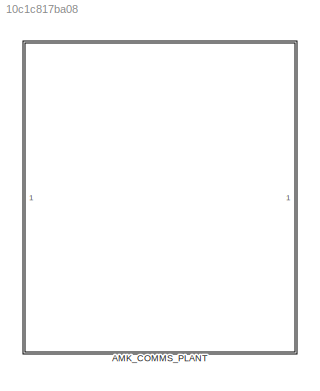
MODEL slx_10c1c817ba08
KIND library
CONFIG AbsTol = auto
CONFIG EnableMultiTasking = off
CONFIG FixedStep = auto
CONFIG MaxStep = auto
CONFIG MinStep = auto
CONFIG RelTol = 1e-3
CONFIG SampleTimeConstraint = Unconstrained
CONFIG SolverName = VariableStepAuto
CONFIG StartTime = 0.0
CONFIG StopTime = 10.0
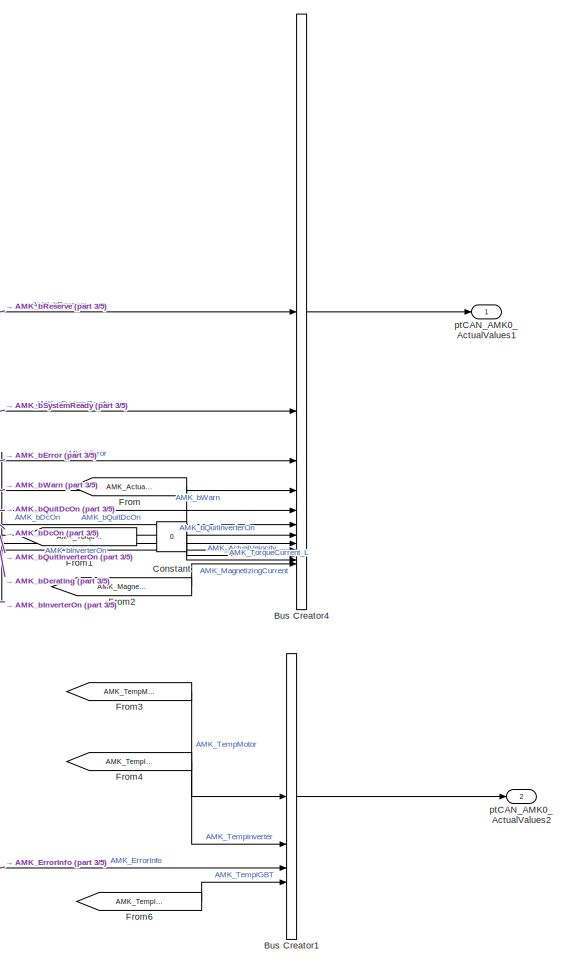
[diagram: AMK_COMMS_PLANT - part 1/5, central region]
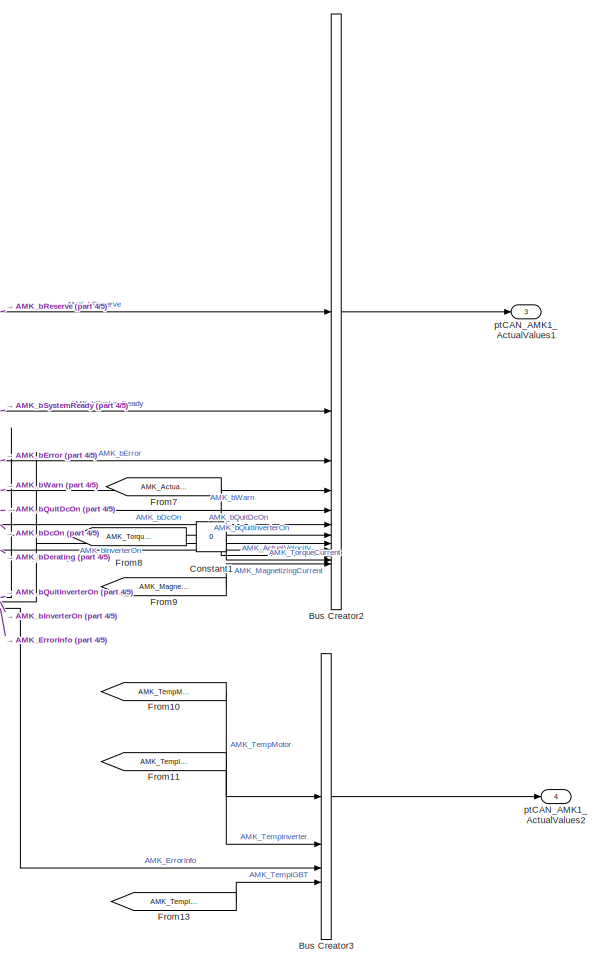
[diagram: AMK_COMMS_PLANT - part 2/5, middle right region]
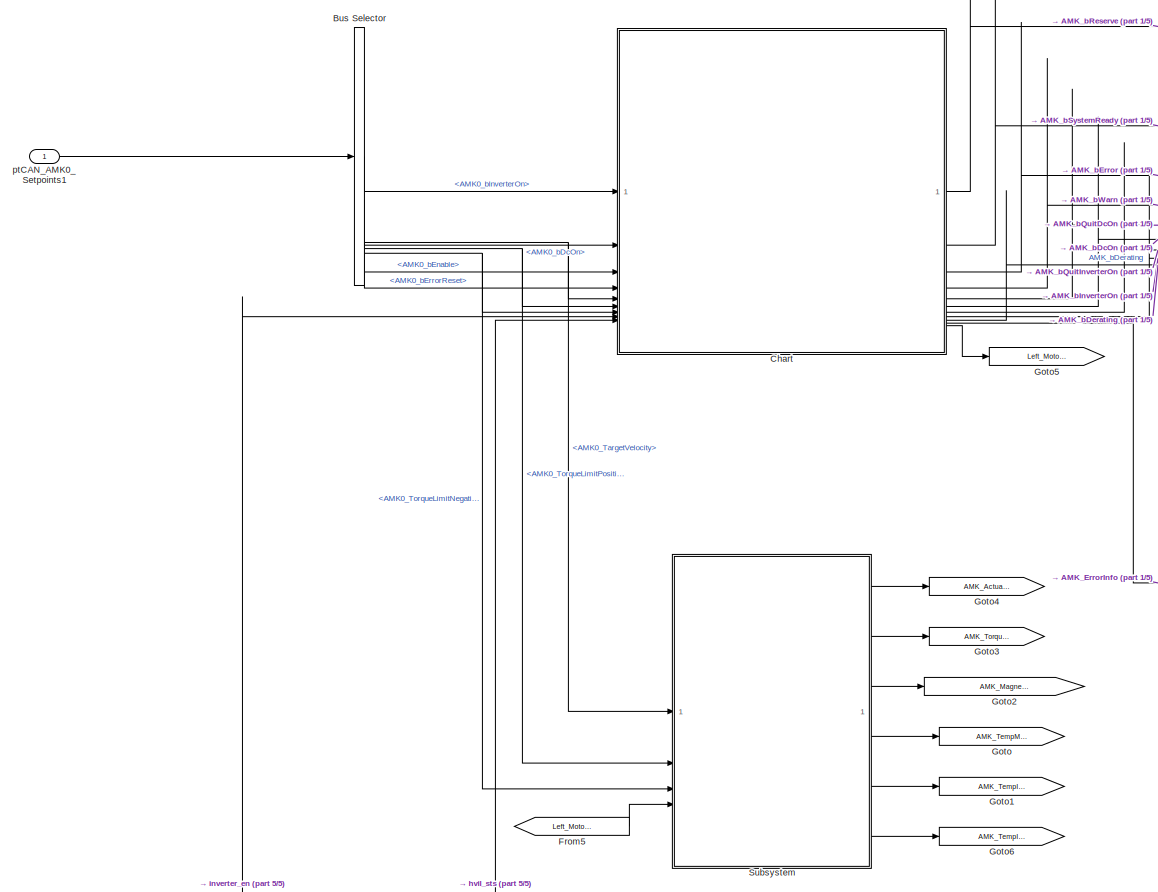
[diagram: AMK_COMMS_PLANT - part 3/5, middle left region]
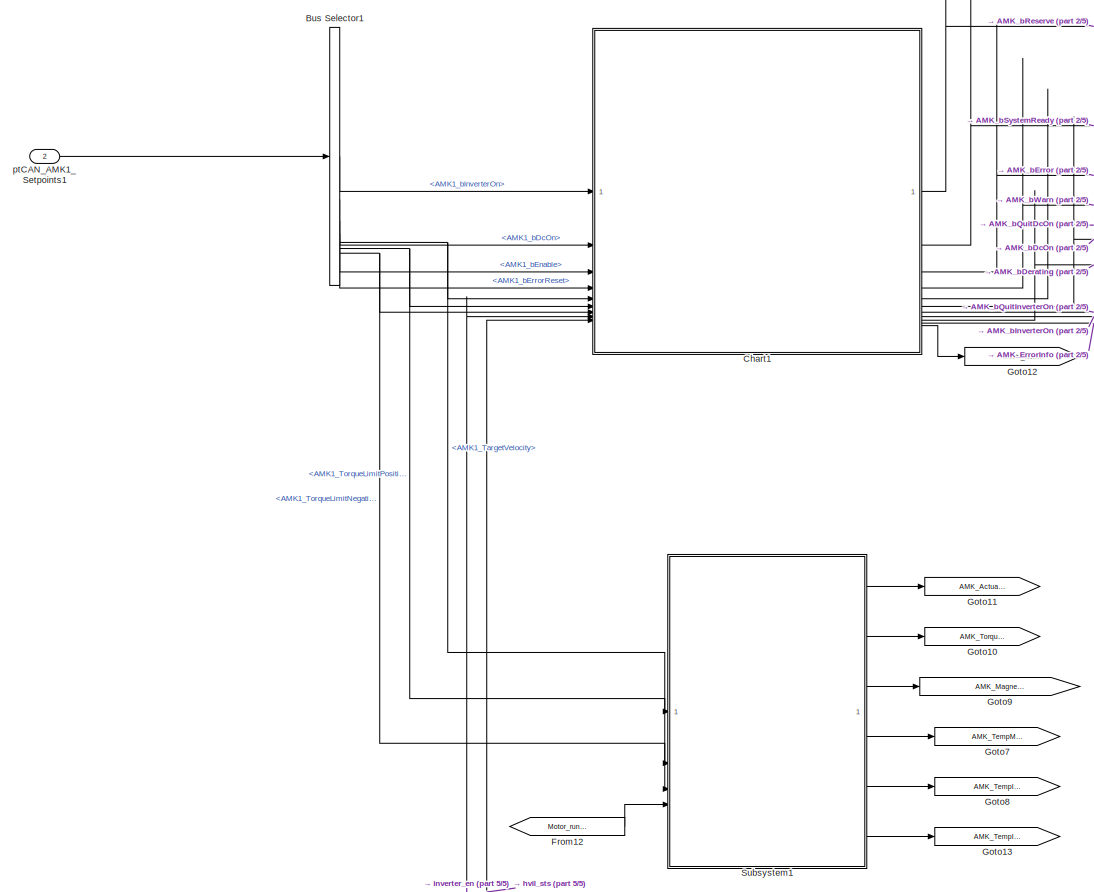
[diagram: AMK_COMMS_PLANT - part 4/5, middle right region]
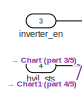
[diagram: AMK_COMMS_PLANT - part 5/5, bottom left region]
BLOCK [SubSystem] AMK_COMMS_PLANT
BLOCK [BusCreator] AMK_COMMS_PLANT/Bus Creator1
  DisplayOption = bar
  InheritFromInputs = on
  Inputs = 4
BLOCK [BusCreator] AMK_COMMS_PLANT/Bus Creator2
  DisplayOption = bar
  InheritFromInputs = on
  Inputs = 12
BLOCK [BusCreator] AMK_COMMS_PLANT/Bus Creator3
  DisplayOption = bar
  InheritFromInputs = on
  Inputs = 4
BLOCK [BusCreator] AMK_COMMS_PLANT/Bus Creator4
  DisplayOption = bar
  InheritFromInputs = on
  Inputs = 12
BLOCK [BusSelector] AMK_COMMS_PLANT/Bus Selector
  OutputSignals = AMK0_bInverterOn,AMK0_bDcOn,AMK0_bEnable,AMK0_bErrorReset,AMK0_TargetVelocity,AMK0_TorqueLimitPositiv,AMK0_TorqueLimitNegativ
BLOCK [BusSelector] AMK_COMMS_PLANT/Bus Selector1
  OutputSignals = AMK1_bInverterOn,AMK1_bDcOn,AMK1_bEnable,AMK1_bErrorReset,AMK1_TargetVelocity,AMK1_TorqueLimitPositiv,AMK1_TorqueLimitNegativ
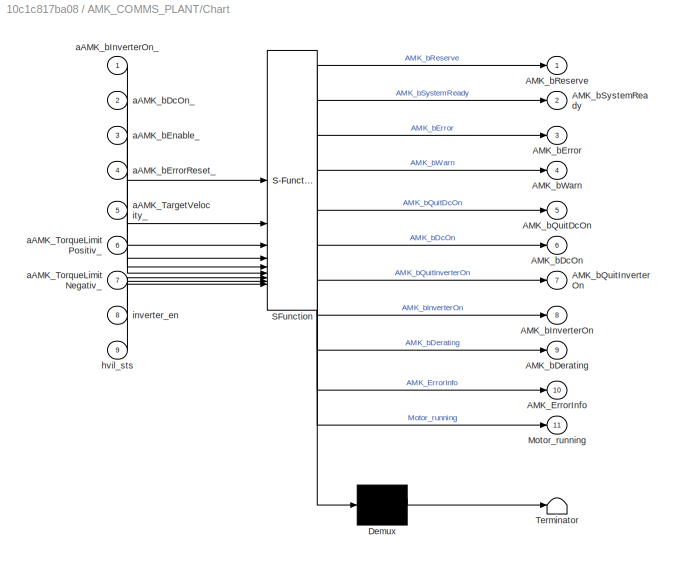
BLOCK [SubSystem] AMK_COMMS_PLANT/Chart
  ErrorFcn = Stateflow.Translate.translate
  PermitHierarchicalResolution = ExplicitOnly
  SFBlockType = Chart
  TreatAsAtomicUnit = on
BLOCK [Demux] AMK_COMMS_PLANT/Chart/ Demux 
  Outputs = 1
BLOCK [S-Function] AMK_COMMS_PLANT/Chart/ SFunction 
  EnableBusSupport = off
  FunctionName = sf_sfun
  PortCounts = [9 12]
  SFcnIsStateOwnerBlock = off
  SFunctionDeploymentMode = off
  Tag = Stateflow S-Function 3
BLOCK [Terminator] AMK_COMMS_PLANT/Chart/ Terminator 
BLOCK [Outport] AMK_COMMS_PLANT/Chart/AMK_ErrorInfo
  Port = 10
BLOCK [Outport] AMK_COMMS_PLANT/Chart/AMK_bDcOn
  Port = 6
BLOCK [Outport] AMK_COMMS_PLANT/Chart/AMK_bDerating
  Port = 9
BLOCK [Outport] AMK_COMMS_PLANT/Chart/AMK_bError
  Port = 3
BLOCK [Outport] AMK_COMMS_PLANT/Chart/AMK_bInverterOn
  Port = 8
BLOCK [Outport] AMK_COMMS_PLANT/Chart/AMK_bQuitDcOn
  Port = 5
BLOCK [Outport] AMK_COMMS_PLANT/Chart/AMK_bQuitInverterOn
  Port = 7
BLOCK [Outport] AMK_COMMS_PLANT/Chart/AMK_bReserve
BLOCK [Outport] AMK_COMMS_PLANT/Chart/AMK_bSystemReady
  Port = 2
BLOCK [Outport] AMK_COMMS_PLANT/Chart/AMK_bWarn
  Port = 4
BLOCK [Outport] AMK_COMMS_PLANT/Chart/Motor_running
  Port = 11
BLOCK [Inport] AMK_COMMS_PLANT/Chart/aAMK_TargetVelocity_
  Port = 5
BLOCK [Inport] AMK_COMMS_PLANT/Chart/aAMK_TorqueLimitNegativ_
  Port = 7
BLOCK [Inport] AMK_COMMS_PLANT/Chart/aAMK_TorqueLimitPositiv_
  Port = 6
BLOCK [Inport] AMK_COMMS_PLANT/Chart/aAMK_bDcOn_
  Port = 2
BLOCK [Inport] AMK_COMMS_PLANT/Chart/aAMK_bEnable_
  Port = 3
BLOCK [Inport] AMK_COMMS_PLANT/Chart/aAMK_bErrorReset_
  Port = 4
BLOCK [Inport] AMK_COMMS_PLANT/Chart/aAMK_bInverterOn_
BLOCK [Inport] AMK_COMMS_PLANT/Chart/hvil_sts
  Port = 9
BLOCK [Inport] AMK_COMMS_PLANT/Chart/inverter_en
  Port = 8
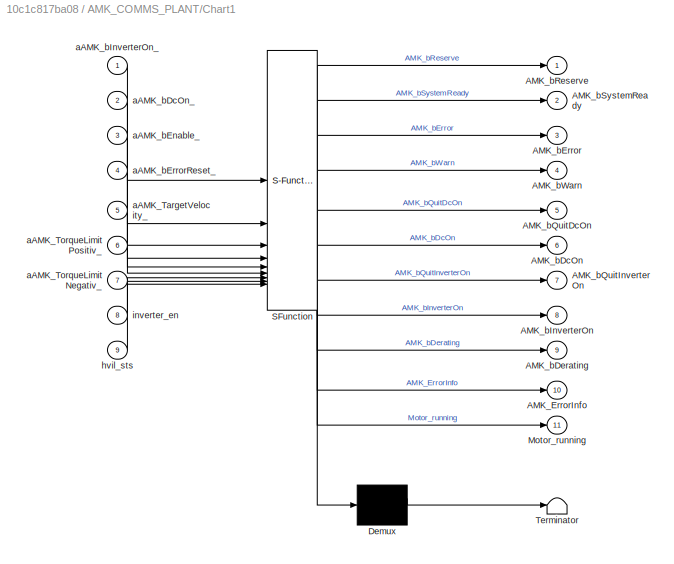
BLOCK [SubSystem] AMK_COMMS_PLANT/Chart1
  ErrorFcn = Stateflow.Translate.translate
  PermitHierarchicalResolution = ExplicitOnly
  SFBlockType = Chart
  TreatAsAtomicUnit = on
BLOCK [Demux] AMK_COMMS_PLANT/Chart1/ Demux 
  Outputs = 1
BLOCK [S-Function] AMK_COMMS_PLANT/Chart1/ SFunction 
  EnableBusSupport = off
  FunctionName = sf_sfun
  PortCounts = [9 12]
  SFcnIsStateOwnerBlock = off
  SFunctionDeploymentMode = off
  Tag = Stateflow S-Function 1
BLOCK [Terminator] AMK_COMMS_PLANT/Chart1/ Terminator 
BLOCK [Outport] AMK_COMMS_PLANT/Chart1/AMK_ErrorInfo
  Port = 10
BLOCK [Outport] AMK_COMMS_PLANT/Chart1/AMK_bDcOn
  Port = 6
BLOCK [Outport] AMK_COMMS_PLANT/Chart1/AMK_bDerating
  Port = 9
BLOCK [Outport] AMK_COMMS_PLANT/Chart1/AMK_bError
  Port = 3
BLOCK [Outport] AMK_COMMS_PLANT/Chart1/AMK_bInverterOn
  Port = 8
BLOCK [Outport] AMK_COMMS_PLANT/Chart1/AMK_bQuitDcOn
  Port = 5
BLOCK [Outport] AMK_COMMS_PLANT/Chart1/AMK_bQuitInverterOn
  Port = 7
BLOCK [Outport] AMK_COMMS_PLANT/Chart1/AMK_bReserve
BLOCK [Outport] AMK_COMMS_PLANT/Chart1/AMK_bSystemReady
  Port = 2
BLOCK [Outport] AMK_COMMS_PLANT/Chart1/AMK_bWarn
  Port = 4
BLOCK [Outport] AMK_COMMS_PLANT/Chart1/Motor_running
  Port = 11
BLOCK [Inport] AMK_COMMS_PLANT/Chart1/aAMK_TargetVelocity_
  Port = 5
BLOCK [Inport] AMK_COMMS_PLANT/Chart1/aAMK_TorqueLimitNegativ_
  Port = 7
BLOCK [Inport] AMK_COMMS_PLANT/Chart1/aAMK_TorqueLimitPositiv_
  Port = 6
BLOCK [Inport] AMK_COMMS_PLANT/Chart1/aAMK_bDcOn_
  Port = 2
BLOCK [Inport] AMK_COMMS_PLANT/Chart1/aAMK_bEnable_
  Port = 3
BLOCK [Inport] AMK_COMMS_PLANT/Chart1/aAMK_bErrorReset_
  Port = 4
BLOCK [Inport] AMK_COMMS_PLANT/Chart1/aAMK_bInverterOn_
BLOCK [Inport] AMK_COMMS_PLANT/Chart1/hvil_sts
  Port = 9
BLOCK [Inport] AMK_COMMS_PLANT/Chart1/inverter_en
  Port = 8
BLOCK [Constant] AMK_COMMS_PLANT/Constant
  Value = 0
BLOCK [Constant] AMK_COMMS_PLANT/Constant1
  Value = 0
BLOCK [From] AMK_COMMS_PLANT/From
  GotoTag = AMK_ActualVelocity_L
BLOCK [From] AMK_COMMS_PLANT/From1
  GotoTag = AMK_TorqueCurrent_L
BLOCK [From] AMK_COMMS_PLANT/From10
  GotoTag = AMK_TempMotor
BLOCK [From] AMK_COMMS_PLANT/From11
  GotoTag = AMK_TempInverter
BLOCK [From] AMK_COMMS_PLANT/From12
  GotoTag = Motor_running
BLOCK [From] AMK_COMMS_PLANT/From13
  GotoTag = AMK_TempIGBT
BLOCK [From] AMK_COMMS_PLANT/From2
  GotoTag = AMK_MagnetizingCurrent_L
BLOCK [From] AMK_COMMS_PLANT/From3
  GotoTag = AMK_TempMotor_L
BLOCK [From] AMK_COMMS_PLANT/From4
  GotoTag = AMK_TempInverter_L
BLOCK [From] AMK_COMMS_PLANT/From5
  GotoTag = Left_Motor_running
BLOCK [From] AMK_COMMS_PLANT/From6
  GotoTag = AMK_TempIGBT_L
BLOCK [From] AMK_COMMS_PLANT/From7
  GotoTag = AMK_ActualVelocity
BLOCK [From] AMK_COMMS_PLANT/From8
  GotoTag = AMK_TorqueCurrent
BLOCK [From] AMK_COMMS_PLANT/From9
  GotoTag = AMK_MagnetizingCurrent
BLOCK [Goto] AMK_COMMS_PLANT/Goto
  GotoTag = AMK_TempMotor_L
BLOCK [Goto] AMK_COMMS_PLANT/Goto1
  GotoTag = AMK_TempInverter_L
BLOCK [Goto] AMK_COMMS_PLANT/Goto10
  GotoTag = AMK_TorqueCurrent
BLOCK [Goto] AMK_COMMS_PLANT/Goto11
  GotoTag = AMK_ActualVelocity
BLOCK [Goto] AMK_COMMS_PLANT/Goto12
  GotoTag = Motor_running
BLOCK [Goto] AMK_COMMS_PLANT/Goto13
  GotoTag = AMK_TempIGBT
BLOCK [Goto] AMK_COMMS_PLANT/Goto2
  GotoTag = AMK_MagnetizingCurrent_L
BLOCK [Goto] AMK_COMMS_PLANT/Goto3
  GotoTag = AMK_TorqueCurrent_L
BLOCK [Goto] AMK_COMMS_PLANT/Goto4
  GotoTag = AMK_ActualVelocity_L
BLOCK [Goto] AMK_COMMS_PLANT/Goto5
  GotoTag = Left_Motor_running
BLOCK [Goto] AMK_COMMS_PLANT/Goto6
  GotoTag = AMK_TempIGBT_L
BLOCK [Goto] AMK_COMMS_PLANT/Goto7
  GotoTag = AMK_TempMotor
BLOCK [Goto] AMK_COMMS_PLANT/Goto8
  GotoTag = AMK_TempInverter
BLOCK [Goto] AMK_COMMS_PLANT/Goto9
  GotoTag = AMK_MagnetizingCurrent
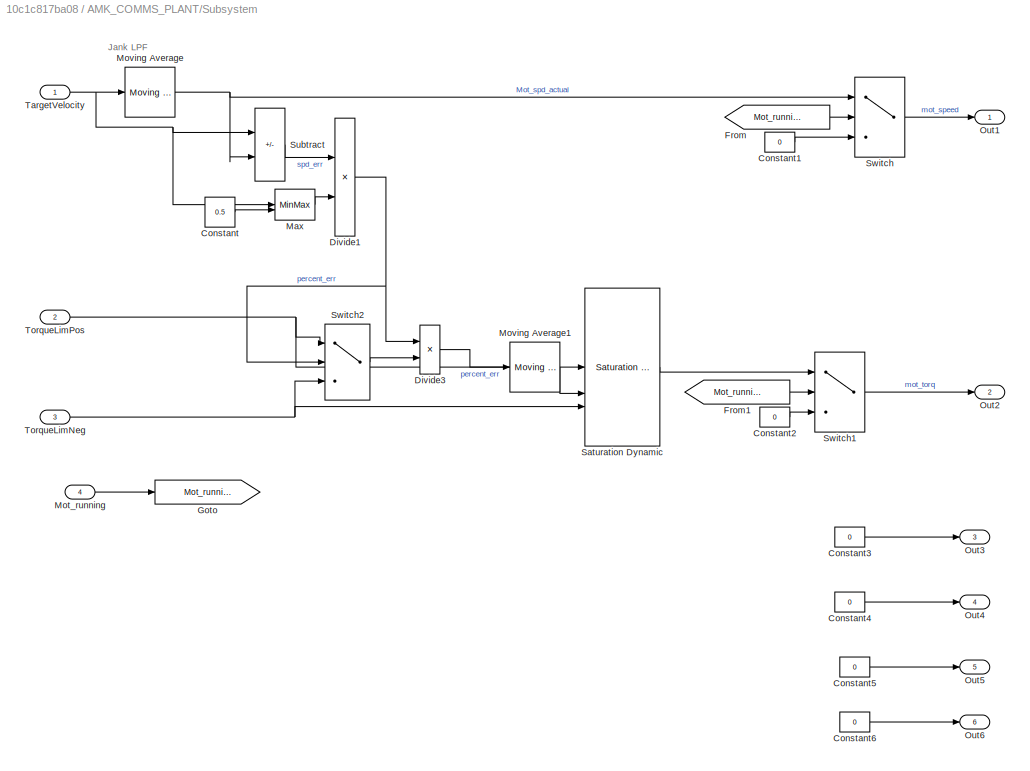
BLOCK [SubSystem] AMK_COMMS_PLANT/Subsystem
BLOCK [Constant] AMK_COMMS_PLANT/Subsystem/Constant
  Value = 0.5
BLOCK [Constant] AMK_COMMS_PLANT/Subsystem/Constant1
  Value = 0
BLOCK [Constant] AMK_COMMS_PLANT/Subsystem/Constant2
  Value = 0
BLOCK [Constant] AMK_COMMS_PLANT/Subsystem/Constant3
  OutDataTypeStr = single
  Value = 0
BLOCK [Constant] AMK_COMMS_PLANT/Subsystem/Constant4
  OutDataTypeStr = single
  Value = 0
BLOCK [Constant] AMK_COMMS_PLANT/Subsystem/Constant5
  OutDataTypeStr = single
  Value = 0
BLOCK [Constant] AMK_COMMS_PLANT/Subsystem/Constant6
  OutDataTypeStr = single
  Value = 0
BLOCK [Product] AMK_COMMS_PLANT/Subsystem/Divide1
  Inputs = */
BLOCK [Product] AMK_COMMS_PLANT/Subsystem/Divide3
  Inputs = **
BLOCK [From] AMK_COMMS_PLANT/Subsystem/From
  GotoTag = Mot_running
BLOCK [From] AMK_COMMS_PLANT/Subsystem/From1
  GotoTag = Mot_running
BLOCK [Goto] AMK_COMMS_PLANT/Subsystem/Goto
  GotoTag = Mot_running
BLOCK [MinMax] AMK_COMMS_PLANT/Subsystem/Max
  Function = max
  Inputs = 2
BLOCK [Inport] AMK_COMMS_PLANT/Subsystem/Mot_running
  Port = 4
BLOCK [Reference] AMK_COMMS_PLANT/Subsystem/Moving Average  REF=dspstat3/Moving
Average
  SourceBlock = dspstat3/Moving\nAverage
  SourceType = dsp.simulink.MovingAverage
BLOCK [Reference] AMK_COMMS_PLANT/Subsystem/Moving Average1  REF=dspstat3/Moving
Average
  SourceBlock = dspstat3/Moving\nAverage
  SourceType = dsp.simulink.MovingAverage
BLOCK [Outport] AMK_COMMS_PLANT/Subsystem/Out1
BLOCK [Outport] AMK_COMMS_PLANT/Subsystem/Out2
  Port = 2
BLOCK [Outport] AMK_COMMS_PLANT/Subsystem/Out3
  Port = 3
BLOCK [Outport] AMK_COMMS_PLANT/Subsystem/Out4
  Port = 4
BLOCK [Outport] AMK_COMMS_PLANT/Subsystem/Out5
  Port = 5
BLOCK [Outport] AMK_COMMS_PLANT/Subsystem/Out6
  Port = 6
BLOCK [Reference] AMK_COMMS_PLANT/Subsystem/Saturation Dynamic  REF=simulink/Discontinuities/Saturation
Dynamic
  SourceBlock = simulink/Discontinuities/Saturation\nDynamic
  SourceType = Saturation Dynamic
BLOCK [Sum] AMK_COMMS_PLANT/Subsystem/Subtract
  IconShape = rectangular
  Inputs = +-
BLOCK [Switch] AMK_COMMS_PLANT/Subsystem/Switch
  Criteria = u2 > Threshold
  InputSameDT = off
  OutDataTypeStr = single
  SaturateOnIntegerOverflow = off
BLOCK [Switch] AMK_COMMS_PLANT/Subsystem/Switch1
  Criteria = u2 > Threshold
  InputSameDT = off
  OutDataTypeStr = single
  SaturateOnIntegerOverflow = off
BLOCK [Switch] AMK_COMMS_PLANT/Subsystem/Switch2
  InputSameDT = off
  SaturateOnIntegerOverflow = off
BLOCK [Inport] AMK_COMMS_PLANT/Subsystem/TargetVelocity
BLOCK [Inport] AMK_COMMS_PLANT/Subsystem/TorqueLimNeg
  Port = 3
BLOCK [Inport] AMK_COMMS_PLANT/Subsystem/TorqueLimPos
  Port = 2
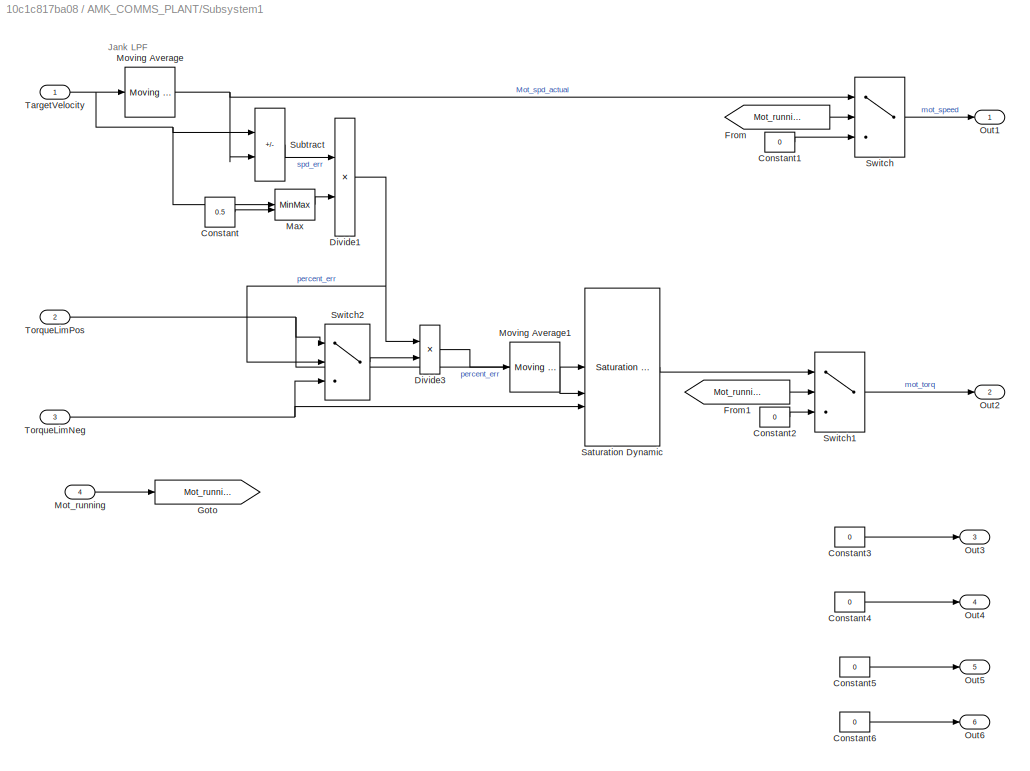
BLOCK [SubSystem] AMK_COMMS_PLANT/Subsystem1
BLOCK [Constant] AMK_COMMS_PLANT/Subsystem1/Constant
  Value = 0.5
BLOCK [Constant] AMK_COMMS_PLANT/Subsystem1/Constant1
  Value = 0
BLOCK [Constant] AMK_COMMS_PLANT/Subsystem1/Constant2
  Value = 0
BLOCK [Constant] AMK_COMMS_PLANT/Subsystem1/Constant3
  OutDataTypeStr = single
  Value = 0
BLOCK [Constant] AMK_COMMS_PLANT/Subsystem1/Constant4
  OutDataTypeStr = single
  Value = 0
BLOCK [Constant] AMK_COMMS_PLANT/Subsystem1/Constant5
  OutDataTypeStr = single
  Value = 0
BLOCK [Constant] AMK_COMMS_PLANT/Subsystem1/Constant6
  OutDataTypeStr = single
  Value = 0
BLOCK [Product] AMK_COMMS_PLANT/Subsystem1/Divide1
  Inputs = */
BLOCK [Product] AMK_COMMS_PLANT/Subsystem1/Divide3
  Inputs = **
BLOCK [From] AMK_COMMS_PLANT/Subsystem1/From
  GotoTag = Mot_running
BLOCK [From] AMK_COMMS_PLANT/Subsystem1/From1
  GotoTag = Mot_running
BLOCK [Goto] AMK_COMMS_PLANT/Subsystem1/Goto
  GotoTag = Mot_running
BLOCK [MinMax] AMK_COMMS_PLANT/Subsystem1/Max
  Function = max
  Inputs = 2
BLOCK [Inport] AMK_COMMS_PLANT/Subsystem1/Mot_running
  Port = 4
BLOCK [Reference] AMK_COMMS_PLANT/Subsystem1/Moving Average  REF=dspstat3/Moving
Average
  SourceBlock = dspstat3/Moving\nAverage
  SourceType = dsp.simulink.MovingAverage
BLOCK [Reference] AMK_COMMS_PLANT/Subsystem1/Moving Average1  REF=dspstat3/Moving
Average
  SourceBlock = dspstat3/Moving\nAverage
  SourceType = dsp.simulink.MovingAverage
BLOCK [Outport] AMK_COMMS_PLANT/Subsystem1/Out1
BLOCK [Outport] AMK_COMMS_PLANT/Subsystem1/Out2
  Port = 2
BLOCK [Outport] AMK_COMMS_PLANT/Subsystem1/Out3
  Port = 3
BLOCK [Outport] AMK_COMMS_PLANT/Subsystem1/Out4
  Port = 4
BLOCK [Outport] AMK_COMMS_PLANT/Subsystem1/Out5
  Port = 5
BLOCK [Outport] AMK_COMMS_PLANT/Subsystem1/Out6
  Port = 6
BLOCK [Reference] AMK_COMMS_PLANT/Subsystem1/Saturation Dynamic  REF=simulink/Discontinuities/Saturation
Dynamic
  SourceBlock = simulink/Discontinuities/Saturation\nDynamic
  SourceType = Saturation Dynamic
BLOCK [Sum] AMK_COMMS_PLANT/Subsystem1/Subtract
  IconShape = rectangular
  Inputs = +-
BLOCK [Switch] AMK_COMMS_PLANT/Subsystem1/Switch
  Criteria = u2 > Threshold
  InputSameDT = off
  OutDataTypeStr = single
  SaturateOnIntegerOverflow = off
BLOCK [Switch] AMK_COMMS_PLANT/Subsystem1/Switch1
  Criteria = u2 > Threshold
  InputSameDT = off
  OutDataTypeStr = single
  SaturateOnIntegerOverflow = off
BLOCK [Switch] AMK_COMMS_PLANT/Subsystem1/Switch2
  InputSameDT = off
  SaturateOnIntegerOverflow = off
BLOCK [Inport] AMK_COMMS_PLANT/Subsystem1/TargetVelocity
BLOCK [Inport] AMK_COMMS_PLANT/Subsystem1/TorqueLimNeg
  Port = 3
BLOCK [Inport] AMK_COMMS_PLANT/Subsystem1/TorqueLimPos
  Port = 2
BLOCK [Inport] AMK_COMMS_PLANT/hvil_sts
  Port = 4
BLOCK [Inport] AMK_COMMS_PLANT/inverter_en
  Port = 3
BLOCK [Outport] AMK_COMMS_PLANT/ptCAN_AMK0_ActualValues1
BLOCK [Outport] AMK_COMMS_PLANT/ptCAN_AMK0_ActualValues2
  Port = 2
BLOCK [Inport] AMK_COMMS_PLANT/ptCAN_AMK0_Setpoints1
BLOCK [Outport] AMK_COMMS_PLANT/ptCAN_AMK1_ActualValues1
  Port = 3
BLOCK [Outport] AMK_COMMS_PLANT/ptCAN_AMK1_ActualValues2
  Port = 4
BLOCK [Inport] AMK_COMMS_PLANT/ptCAN_AMK1_Setpoints1
  Port = 2
ANNOTATION AMK_COMMS_PLANT/Subsystem: Jank LPF
ANNOTATION AMK_COMMS_PLANT/Subsystem1: Jank LPF
LINE AMK_COMMS_PLANT/Bus Creator1:1 -> AMK_COMMS_PLANT/ptCAN_AMK0_ActualValues2:1
LINE AMK_COMMS_PLANT/Bus Creator2:1 -> AMK_COMMS_PLANT/ptCAN_AMK1_ActualValues1:1
LINE AMK_COMMS_PLANT/Bus Creator3:1 -> AMK_COMMS_PLANT/ptCAN_AMK1_ActualValues2:1
LINE AMK_COMMS_PLANT/Bus Creator4:1 -> AMK_COMMS_PLANT/ptCAN_AMK0_ActualValues1:1
LINE AMK_COMMS_PLANT/Bus Selector1:1 -> AMK_COMMS_PLANT/Chart1:1
LINE AMK_COMMS_PLANT/Bus Selector1:2 -> AMK_COMMS_PLANT/Chart1:2
LINE AMK_COMMS_PLANT/Bus Selector1:3 -> AMK_COMMS_PLANT/Chart1:3
LINE AMK_COMMS_PLANT/Bus Selector1:4 -> AMK_COMMS_PLANT/Chart1:4
NET AMK_COMMS_PLANT/Bus Selector1:5 -> AMK_COMMS_PLANT/Chart1:5, AMK_COMMS_PLANT/Subsystem1:1
NET AMK_COMMS_PLANT/Bus Selector1:6 -> AMK_COMMS_PLANT/Chart1:6, AMK_COMMS_PLANT/Subsystem1:2
NET AMK_COMMS_PLANT/Bus Selector1:7 -> AMK_COMMS_PLANT/Chart1:7, AMK_COMMS_PLANT/Subsystem1:3
LINE AMK_COMMS_PLANT/Bus Selector:1 -> AMK_COMMS_PLANT/Chart:1
LINE AMK_COMMS_PLANT/Bus Selector:2 -> AMK_COMMS_PLANT/Chart:2
LINE AMK_COMMS_PLANT/Bus Selector:3 -> AMK_COMMS_PLANT/Chart:3
LINE AMK_COMMS_PLANT/Bus Selector:4 -> AMK_COMMS_PLANT/Chart:4
NET AMK_COMMS_PLANT/Bus Selector:5 -> AMK_COMMS_PLANT/Chart:5, AMK_COMMS_PLANT/Subsystem:1
NET AMK_COMMS_PLANT/Bus Selector:6 -> AMK_COMMS_PLANT/Chart:6, AMK_COMMS_PLANT/Subsystem:2
NET AMK_COMMS_PLANT/Bus Selector:7 -> AMK_COMMS_PLANT/Chart:7, AMK_COMMS_PLANT/Subsystem:3
LINE AMK_COMMS_PLANT/Chart1:1 -> AMK_COMMS_PLANT/Bus Creator2:1
LINE AMK_COMMS_PLANT/Chart1:10 -> AMK_COMMS_PLANT/Bus Creator3:3
LINE AMK_COMMS_PLANT/Chart1:11 -> AMK_COMMS_PLANT/Goto12:1
LINE AMK_COMMS_PLANT/Chart1:2 -> AMK_COMMS_PLANT/Bus Creator2:2
LINE AMK_COMMS_PLANT/Chart1:3 -> AMK_COMMS_PLANT/Bus Creator2:3
LINE AMK_COMMS_PLANT/Chart1:4 -> AMK_COMMS_PLANT/Bus Creator2:4
LINE AMK_COMMS_PLANT/Chart1:5 -> AMK_COMMS_PLANT/Bus Creator2:5
LINE AMK_COMMS_PLANT/Chart1:6 -> AMK_COMMS_PLANT/Bus Creator2:6
LINE AMK_COMMS_PLANT/Chart1:7 -> AMK_COMMS_PLANT/Bus Creator2:7
LINE AMK_COMMS_PLANT/Chart1:8 -> AMK_COMMS_PLANT/Bus Creator2:8
LINE AMK_COMMS_PLANT/Chart1:9 -> AMK_COMMS_PLANT/Bus Creator2:9
LINE AMK_COMMS_PLANT/Chart:1 -> AMK_COMMS_PLANT/Bus Creator4:1
LINE AMK_COMMS_PLANT/Chart:10 -> AMK_COMMS_PLANT/Bus Creator1:3
LINE AMK_COMMS_PLANT/Chart:11 -> AMK_COMMS_PLANT/Goto5:1
LINE AMK_COMMS_PLANT/Chart:2 -> AMK_COMMS_PLANT/Bus Creator4:2
LINE AMK_COMMS_PLANT/Chart:3 -> AMK_COMMS_PLANT/Bus Creator4:3
LINE AMK_COMMS_PLANT/Chart:4 -> AMK_COMMS_PLANT/Bus Creator4:4
LINE AMK_COMMS_PLANT/Chart:5 -> AMK_COMMS_PLANT/Bus Creator4:5
LINE AMK_COMMS_PLANT/Chart:6 -> AMK_COMMS_PLANT/Bus Creator4:6
LINE AMK_COMMS_PLANT/Chart:7 -> AMK_COMMS_PLANT/Bus Creator4:7
LINE AMK_COMMS_PLANT/Chart:8 -> AMK_COMMS_PLANT/Bus Creator4:8
LINE AMK_COMMS_PLANT/Chart:9 -> AMK_COMMS_PLANT/Bus Creator4:9
LINE AMK_COMMS_PLANT/Constant1:1 -> AMK_COMMS_PLANT/Bus Creator2:11
LINE AMK_COMMS_PLANT/Constant:1 -> AMK_COMMS_PLANT/Bus Creator4:11
LINE AMK_COMMS_PLANT/From10:1 -> AMK_COMMS_PLANT/Bus Creator3:1
LINE AMK_COMMS_PLANT/From11:1 -> AMK_COMMS_PLANT/Bus Creator3:2
LINE AMK_COMMS_PLANT/From12:1 -> AMK_COMMS_PLANT/Subsystem1:4
LINE AMK_COMMS_PLANT/From13:1 -> AMK_COMMS_PLANT/Bus Creator3:4
LINE AMK_COMMS_PLANT/From2:1 -> AMK_COMMS_PLANT/Bus Creator4:12
LINE AMK_COMMS_PLANT/From3:1 -> AMK_COMMS_PLANT/Bus Creator1:1
LINE AMK_COMMS_PLANT/From4:1 -> AMK_COMMS_PLANT/Bus Creator1:2
LINE AMK_COMMS_PLANT/From5:1 -> AMK_COMMS_PLANT/Subsystem:4
LINE AMK_COMMS_PLANT/From6:1 -> AMK_COMMS_PLANT/Bus Creator1:4
LINE AMK_COMMS_PLANT/From7:1 -> AMK_COMMS_PLANT/Bus Creator2:10
LINE AMK_COMMS_PLANT/From9:1 -> AMK_COMMS_PLANT/Bus Creator2:12
LINE AMK_COMMS_PLANT/From:1 -> AMK_COMMS_PLANT/Bus Creator4:10
LINE AMK_COMMS_PLANT/Subsystem/Constant1:1 -> AMK_COMMS_PLANT/Subsystem/Switch:3
LINE AMK_COMMS_PLANT/Subsystem/Constant2:1 -> AMK_COMMS_PLANT/Subsystem/Switch1:3
LINE AMK_COMMS_PLANT/Subsystem/Constant3:1 -> AMK_COMMS_PLANT/Subsystem/Out3:1
LINE AMK_COMMS_PLANT/Subsystem/Constant4:1 -> AMK_COMMS_PLANT/Subsystem/Out4:1
LINE AMK_COMMS_PLANT/Subsystem/Constant5:1 -> AMK_COMMS_PLANT/Subsystem/Out5:1
LINE AMK_COMMS_PLANT/Subsystem/Constant6:1 -> AMK_COMMS_PLANT/Subsystem/Out6:1
LINE AMK_COMMS_PLANT/Subsystem/Constant:1 -> AMK_COMMS_PLANT/Subsystem/Max:2
NET AMK_COMMS_PLANT/Subsystem/Divide1:1 -> AMK_COMMS_PLANT/Subsystem/Divide3:1, AMK_COMMS_PLANT/Subsystem/Switch2:2
LINE AMK_COMMS_PLANT/Subsystem/Divide3:1 -> AMK_COMMS_PLANT/Subsystem/Moving Average1:1
LINE AMK_COMMS_PLANT/Subsystem/From1:1 -> AMK_COMMS_PLANT/Subsystem/Switch1:2
LINE AMK_COMMS_PLANT/Subsystem/From:1 -> AMK_COMMS_PLANT/Subsystem/Switch:2
LINE AMK_COMMS_PLANT/Subsystem/Max:1 -> AMK_COMMS_PLANT/Subsystem/Divide1:2
LINE AMK_COMMS_PLANT/Subsystem/Mot_running:1 -> AMK_COMMS_PLANT/Subsystem/Goto:1
LINE AMK_COMMS_PLANT/Subsystem/Moving Average1:1 -> AMK_COMMS_PLANT/Subsystem/Saturation Dynamic:2
NET AMK_COMMS_PLANT/Subsystem/Moving Average:1 -> AMK_COMMS_PLANT/Subsystem/Subtract:2, AMK_COMMS_PLANT/Subsystem/Switch:1
LINE AMK_COMMS_PLANT/Subsystem/Saturation Dynamic:1 -> AMK_COMMS_PLANT/Subsystem/Switch1:1
LINE AMK_COMMS_PLANT/Subsystem/Subtract:1 -> AMK_COMMS_PLANT/Subsystem/Divide1:1
LINE AMK_COMMS_PLANT/Subsystem/Switch1:1 -> AMK_COMMS_PLANT/Subsystem/Out2:1
LINE AMK_COMMS_PLANT/Subsystem/Switch2:1 -> AMK_COMMS_PLANT/Subsystem/Divide3:2
LINE AMK_COMMS_PLANT/Subsystem/Switch:1 -> AMK_COMMS_PLANT/Subsystem/Out1:1
NET AMK_COMMS_PLANT/Subsystem/TargetVelocity:1 -> AMK_COMMS_PLANT/Subsystem/Max:1, AMK_COMMS_PLANT/Subsystem/Moving Average:1, AMK_COMMS_PLANT/Subsystem/Subtract:1
NET AMK_COMMS_PLANT/Subsystem/TorqueLimNeg:1 -> AMK_COMMS_PLANT/Subsystem/Saturation Dynamic:3, AMK_COMMS_PLANT/Subsystem/Switch2:3
NET AMK_COMMS_PLANT/Subsystem/TorqueLimPos:1 -> AMK_COMMS_PLANT/Subsystem/Saturation Dynamic:1, AMK_COMMS_PLANT/Subsystem/Switch2:1
LINE AMK_COMMS_PLANT/Subsystem1/Constant1:1 -> AMK_COMMS_PLANT/Subsystem1/Switch:3
LINE AMK_COMMS_PLANT/Subsystem1/Constant2:1 -> AMK_COMMS_PLANT/Subsystem1/Switch1:3
LINE AMK_COMMS_PLANT/Subsystem1/Constant3:1 -> AMK_COMMS_PLANT/Subsystem1/Out3:1
LINE AMK_COMMS_PLANT/Subsystem1/Constant4:1 -> AMK_COMMS_PLANT/Subsystem1/Out4:1
LINE AMK_COMMS_PLANT/Subsystem1/Constant5:1 -> AMK_COMMS_PLANT/Subsystem1/Out5:1
LINE AMK_COMMS_PLANT/Subsystem1/Constant6:1 -> AMK_COMMS_PLANT/Subsystem1/Out6:1
LINE AMK_COMMS_PLANT/Subsystem1/Constant:1 -> AMK_COMMS_PLANT/Subsystem1/Max:2
NET AMK_COMMS_PLANT/Subsystem1/Divide1:1 -> AMK_COMMS_PLANT/Subsystem1/Divide3:1, AMK_COMMS_PLANT/Subsystem1/Switch2:2
LINE AMK_COMMS_PLANT/Subsystem1/Divide3:1 -> AMK_COMMS_PLANT/Subsystem1/Moving Average1:1
LINE AMK_COMMS_PLANT/Subsystem1/From1:1 -> AMK_COMMS_PLANT/Subsystem1/Switch1:2
LINE AMK_COMMS_PLANT/Subsystem1/From:1 -> AMK_COMMS_PLANT/Subsystem1/Switch:2
LINE AMK_COMMS_PLANT/Subsystem1/Max:1 -> AMK_COMMS_PLANT/Subsystem1/Divide1:2
LINE AMK_COMMS_PLANT/Subsystem1/Mot_running:1 -> AMK_COMMS_PLANT/Subsystem1/Goto:1
LINE AMK_COMMS_PLANT/Subsystem1/Moving Average1:1 -> AMK_COMMS_PLANT/Subsystem1/Saturation Dynamic:2
NET AMK_COMMS_PLANT/Subsystem1/Moving Average:1 -> AMK_COMMS_PLANT/Subsystem1/Subtract:2, AMK_COMMS_PLANT/Subsystem1/Switch:1
LINE AMK_COMMS_PLANT/Subsystem1/Saturation Dynamic:1 -> AMK_COMMS_PLANT/Subsystem1/Switch1:1
LINE AMK_COMMS_PLANT/Subsystem1/Subtract:1 -> AMK_COMMS_PLANT/Subsystem1/Divide1:1
LINE AMK_COMMS_PLANT/Subsystem1/Switch1:1 -> AMK_COMMS_PLANT/Subsystem1/Out2:1
LINE AMK_COMMS_PLANT/Subsystem1/Switch2:1 -> AMK_COMMS_PLANT/Subsystem1/Divide3:2
LINE AMK_COMMS_PLANT/Subsystem1/Switch:1 -> AMK_COMMS_PLANT/Subsystem1/Out1:1
NET AMK_COMMS_PLANT/Subsystem1/TargetVelocity:1 -> AMK_COMMS_PLANT/Subsystem1/Max:1, AMK_COMMS_PLANT/Subsystem1/Moving Average:1, AMK_COMMS_PLANT/Subsystem1/Subtract:1
NET AMK_COMMS_PLANT/Subsystem1/TorqueLimNeg:1 -> AMK_COMMS_PLANT/Subsystem1/Saturation Dynamic:3, AMK_COMMS_PLANT/Subsystem1/Switch2:3
NET AMK_COMMS_PLANT/Subsystem1/TorqueLimPos:1 -> AMK_COMMS_PLANT/Subsystem1/Saturation Dynamic:1, AMK_COMMS_PLANT/Subsystem1/Switch2:1
LINE AMK_COMMS_PLANT/Subsystem1:1 -> AMK_COMMS_PLANT/Goto11:1
LINE AMK_COMMS_PLANT/Subsystem1:2 -> AMK_COMMS_PLANT/Goto10:1
LINE AMK_COMMS_PLANT/Subsystem1:3 -> AMK_COMMS_PLANT/Goto9:1
LINE AMK_COMMS_PLANT/Subsystem1:4 -> AMK_COMMS_PLANT/Goto7:1
LINE AMK_COMMS_PLANT/Subsystem1:5 -> AMK_COMMS_PLANT/Goto8:1
LINE AMK_COMMS_PLANT/Subsystem1:6 -> AMK_COMMS_PLANT/Goto13:1
LINE AMK_COMMS_PLANT/Subsystem:1 -> AMK_COMMS_PLANT/Goto4:1
LINE AMK_COMMS_PLANT/Subsystem:2 -> AMK_COMMS_PLANT/Goto3:1
LINE AMK_COMMS_PLANT/Subsystem:3 -> AMK_COMMS_PLANT/Goto2:1
LINE AMK_COMMS_PLANT/Subsystem:4 -> AMK_COMMS_PLANT/Goto:1
LINE AMK_COMMS_PLANT/Subsystem:5 -> AMK_COMMS_PLANT/Goto1:1
LINE AMK_COMMS_PLANT/Subsystem:6 -> AMK_COMMS_PLANT/Goto6:1
NET AMK_COMMS_PLANT/hvil_sts:1 -> AMK_COMMS_PLANT/Chart1:9, AMK_COMMS_PLANT/Chart:9
NET AMK_COMMS_PLANT/inverter_en:1 -> AMK_COMMS_PLANT/Chart1:8, AMK_COMMS_PLANT/Chart:8
LINE AMK_COMMS_PLANT/ptCAN_AMK0_Setpoints1:1 -> AMK_COMMS_PLANT/Bus Selector:1
LINE AMK_COMMS_PLANT/ptCAN_AMK1_Setpoints1:1 -> AMK_COMMS_PLANT/Bus Selector1:1
note: NET lines group one-source signal fan-out (src -> all destinations, sorted); 1:1 wires keep LINE
CHART AMK_COMMS_PLANT/Chart1 states=14 transitions=18
  STATE_LABEL 'AMK_idle\nen:\nAMK_bReserve = 0;\nAMK_bSystemReady = 0;\nAMK_bError = 0;\nAMK_bWarn = 0;\nAMK_bQuitDcOn = 0;\nAMK_bDcOn = 0;\nAMK_bQuitInverterOn = 0;\nAMK_bInverterOn = 0;\nAMK_ErrorInfo = 0;\nAMK_bDerating = 0;\nMotor_running = false;'
  STATE_LABEL 'LV_ON'
  STATE_LABEL 'Enable_System_Ready\nen:\nAMK_bSystemReady = 1;\n'
  STATE_LABEL 'bQuitDcOff\nen:\nAMK_bQuitDcOn = 0'
  STATE_LABEL 'Enable_Quit_Dc_On\nen:\nAMK_bQuitDcOn = 1;\nAMK_bDcOn = 1;'
  STATE_LABEL 'bDcOff\nen:\nAMK_bDcOn = 0'
  STATE_LABEL 'Inverter_Stuff2\n% (*3) and %(*4)'
  STATE_LABEL 'Inverter'
  STATE_LABEL 'bEnable_off\nen:\nAMK_bQuitDcOn = 0\n'
  STATE_LABEL 'Inventer_On\nen:\nAMK_bInverterOn = 1;\n'
  STATE_LABEL 'bInverter_off\nen:\nAMK_bInverterOn = 0\n'
  STATE_LABEL 'Quit_Inventer_On\nen:\nAMK_bQuitInverterOn =1;'
  STATE_LABEL 'Motor_running\nen,du:\nif hvil_sts == 1;\n    Motor_running = true;\nelse\n    Motor_running = false;\nend'
  STATE_LABEL 'Shut_off_start\nen:\nAMK_bQuitInverterOn =0;'
  STATE_LABEL '[aAMK_bDcOn_ == 1]'
  STATE_LABEL 'after(250,msec)'
  STATE_LABEL '[(abs(aAMK_TargetVelocity_) == 0) && ...\n(abs(aAMK_TorqueLimitPositiv_) == 0) && ...\n(abs(aAMK_TorqueLimitNegativ_) == 0)]'
  STATE_LABEL '[aAMK_bDcOn_ == 0]'
  STATE_LABEL '[(aAMK_bEnable_ == 1) && ...\n(aAMK_bInverterOn_ == 1)]'
  STATE_LABEL 'after(250,msec)'
  STATE_LABEL '[aAMK_bEnable_ == 0]'
  STATE_LABEL '[inverter_en == 1]'
  STATE_LABEL '[aAMK_bInverterOn_ == 0]'
  STATE_LABEL '[inverter_en == 1]'
  STATE_LABEL 'after(250,msec)'
  STATE_LABEL '[inverter_en == 0 || aAMK_bInverterOn_ == 0 || ...\naAMK_bDcOn_ == 0 || aAMK_bEnable_ == 0]'
  STATE_LABEL 'Enable_System_Ready\nen:\nAMK_bSystemReady = 1;\n'
  STATE_LABEL 'bQuitDcOff\nen:\nAMK_bQuitDcOn = 0'
  STATE_LABEL 'Enable_Quit_Dc_On\nen:\nAMK_bQuitDcOn = 1;\nAMK_bDcOn = 1;'
  STATE_LABEL 'bDcOff\nen:\nAMK_bDcOn = 0'
  STATE_LABEL 'Inverter_Stuff2\n% (*3) and %(*4)'
  STATE_LABEL 'Inverter'
  STATE_LABEL 'bEnable_off\nen:\nAMK_bQuitDcOn = 0\n'
  STATE_LABEL 'Inventer_On\nen:\nAMK_bInverterOn = 1;\n'
  STATE_LABEL 'bInverter_off\nen:\nAMK_bInverterOn = 0\n'
  STATE_LABEL 'Quit_Inventer_On\nen:\nAMK_bQuitInverterOn =1;'
  STATE_LABEL 'Motor_running\nen,du:\nif hvil_sts == 1;\n    Motor_running = true;\nelse\n    Motor_running = false;\nend'
  STATE_LABEL 'Shut_off_start\nen:\nAMK_bQuitInverterOn =0;'
CHART AMK_COMMS_PLANT/Chart states=14 transitions=18
  STATE_LABEL 'AMK_idle\nen:\nAMK_bReserve = 0;\nAMK_bSystemReady = 0;\nAMK_bError = 0;\nAMK_bWarn = 0;\nAMK_bQuitDcOn = 0;\nAMK_bDcOn = 0;\nAMK_bQuitInverterOn = 0;\nAMK_bInverterOn = 0;\nAMK_ErrorInfo = 0;\nAMK_bDerating = 0;\nMotor_running = false;'
  STATE_LABEL 'LV_ON'
  STATE_LABEL 'Enable_System_Ready\nen:\nAMK_bSystemReady = 1;\n'
  STATE_LABEL 'bQuitDcOff\nen:\nAMK_bQuitDcOn = 0'
  STATE_LABEL 'Enable_Quit_Dc_On\nen:\nAMK_bQuitDcOn = 1;\nAMK_bDcOn = 1;'
  STATE_LABEL 'bDcOff\nen:\nAMK_bDcOn = 0'
  STATE_LABEL 'Inverter_Stuff2\n% (*3) and %(*4)'
  STATE_LABEL 'Inverter'
  STATE_LABEL 'bEnable_off\nen:\nAMK_bQuitDcOn = 0\n'
  STATE_LABEL 'Inventer_On\nen:\nAMK_bInverterOn = 1;\n'
  STATE_LABEL 'bInverter_off\nen:\nAMK_bInverterOn = 0\n'
  STATE_LABEL 'Quit_Inventer_On\nen:\nAMK_bQuitInverterOn =1;'
  STATE_LABEL 'Motor_running\nen,du:\nif hvil_sts == 1;\n    Motor_running = true;\nelse\n    Motor_running = false;\nend'
  STATE_LABEL 'Shut_off_start\nen:\nAMK_bQuitInverterOn =0;'
  STATE_LABEL '[aAMK_bDcOn_ == 1]'
  STATE_LABEL 'after(250,msec)'
  STATE_LABEL '[(abs(aAMK_TargetVelocity_) == 0) && ...\n(abs(aAMK_TorqueLimitPositiv_) == 0) && ...\n(abs(aAMK_TorqueLimitNegativ_) == 0)]'
  STATE_LABEL '[aAMK_bDcOn_ == 0]'
  STATE_LABEL '[(aAMK_bEnable_ == 1) && ...\n(aAMK_bInverterOn_ == 1)]'
  STATE_LABEL 'after(250,msec)'
  STATE_LABEL '[aAMK_bEnable_ == 0]'
  STATE_LABEL '[inverter_en == 1]'
  STATE_LABEL '[aAMK_bInverterOn_ == 0]'
  STATE_LABEL '[inverter_en == 1]'
  STATE_LABEL 'after(250,msec)'
  STATE_LABEL '[inverter_en == 0 || aAMK_bInverterOn_ == 0 || ...\naAMK_bDcOn_ == 0 || aAMK_bEnable_ == 0]'
  STATE_LABEL 'Enable_System_Ready\nen:\nAMK_bSystemReady = 1;\n'
  STATE_LABEL 'bQuitDcOff\nen:\nAMK_bQuitDcOn = 0'
  STATE_LABEL 'Enable_Quit_Dc_On\nen:\nAMK_bQuitDcOn = 1;\nAMK_bDcOn = 1;'
  STATE_LABEL 'bDcOff\nen:\nAMK_bDcOn = 0'
  STATE_LABEL 'Inverter_Stuff2\n% (*3) and %(*4)'
  STATE_LABEL 'Inverter'
  STATE_LABEL 'bEnable_off\nen:\nAMK_bQuitDcOn = 0\n'
  STATE_LABEL 'Inventer_On\nen:\nAMK_bInverterOn = 1;\n'
  STATE_LABEL 'bInverter_off\nen:\nAMK_bInverterOn = 0\n'
  STATE_LABEL 'Quit_Inventer_On\nen:\nAMK_bQuitInverterOn =1;'
  STATE_LABEL 'Motor_running\nen,du:\nif hvil_sts == 1;\n    Motor_running = true;\nelse\n    Motor_running = false;\nend'
  STATE_LABEL 'Shut_off_start\nen:\nAMK_bQuitInverterOn =0;'
CHART  states=0 transitions=0
CHART  states=0 transitions=0
